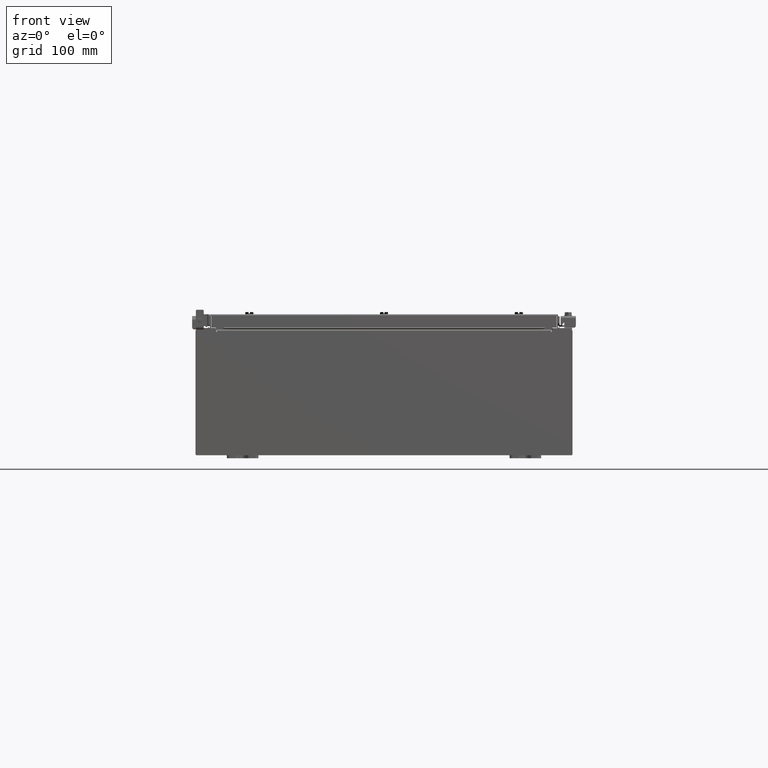
[diagram: clean part render]
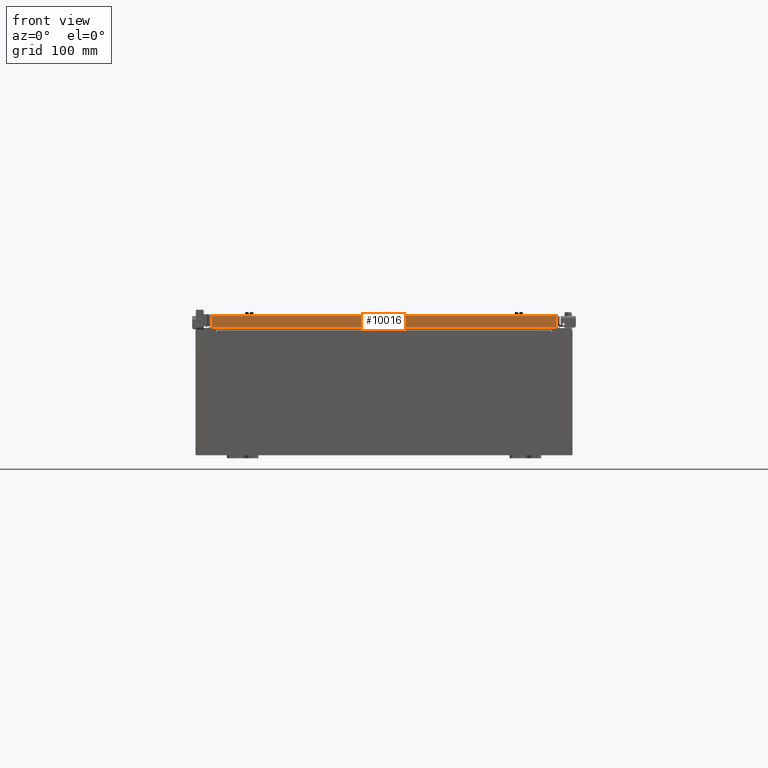
[diagram: same view with one face highlighted and labeled with its STEP entity id]
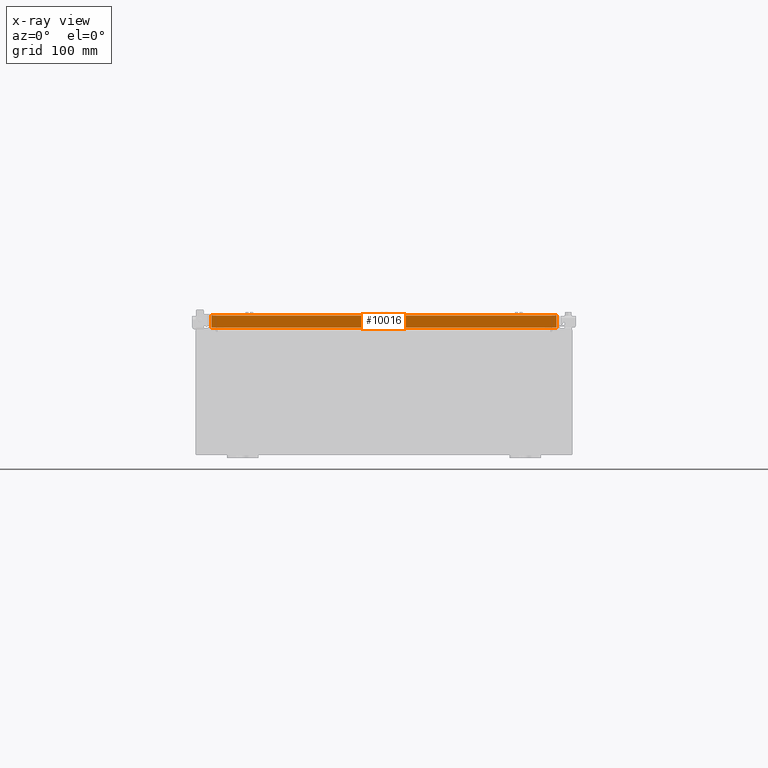
[diagram: x-ray of the same camera — body ghosted, the highlighted face saturated]
A machine part, front view. The second image highlights one B-rep face of the part: STEP entity #10016.
The next image is the same camera in x-ray: the body ghosted, the highlighted face saturated — about 0% of this face is hidden behind the body in this view.
In plain terms, the highlighted planar face has unit normal (-0, 1, -0).
Its self-contained STEP definition (entity closure, byte-faithful):
#1400 = VECTOR ( 'NONE', #5239, 39.37007874015748100 ) ;
#1714 = CARTESIAN_POINT ( 'NONE',  ( 11.07799999999999600, -17.09400000000000100, -0.8499999999999996400 ) ) ;
#1773 = ORIENTED_EDGE ( 'NONE', *, *, #9885, .F. ) ;
#2056 = ORIENTED_EDGE ( 'NONE', *, *, #18012, .F. ) ;
#2246 = VECTOR ( 'NONE', #7848, 39.37007874015748100 ) ;
#3085 = CARTESIAN_POINT ( 'NONE',  ( 10.98915786437626700, -17.09400000000000100, -0.8499999999999996400 ) ) ;
#3918 = CARTESIAN_POINT ( 'NONE',  ( -10.23915786437627100, -17.09399999999999800, -0.8500000000000012000 ) ) ;
#4022 = LINE ( 'NONE', #8791, #23183 ) ;
#4426 = AXIS2_PLACEMENT_3D ( 'NONE', #13505, #15328, #4539 ) ;
#4539 = DIRECTION ( 'NONE',  ( 0.0000000000000000000, 2.818880942772360500E-015, 1.000000000000000000 ) ) ;
#4724 = VERTEX_POINT ( 'NONE', #15511 ) ;
#5239 = DIRECTION ( 'NONE',  ( -1.000000000000000000, 4.379057701015053300E-047, 1.233005954894504400E-016 ) ) ;
#6424 = DIRECTION ( 'NONE',  ( -1.000000000000000000, 4.379057701015053300E-047, 1.233005954894504400E-016 ) ) ;
#6840 = ORIENTED_EDGE ( 'NONE', *, *, #14646, .T. ) ;
#7366 = DIRECTION ( 'NONE',  ( 1.000000000000000000, 6.951393977153906300E-032, -9.864047639156036200E-017 ) ) ;
#7663 = CARTESIAN_POINT ( 'NONE',  ( 10.23915786437626700, -17.09399999999999800, -0.8500000000000012000 ) ) ;
#7848 = DIRECTION ( 'NONE',  ( -0.0000000000000000000, -2.818880942772360500E-015, -1.000000000000000000 ) ) ;
#7985 = PLANE ( 'NONE',  #4426 ) ;
#8791 = CARTESIAN_POINT ( 'NONE',  ( -10.98915786437626900, -17.09400000000000100, 4.844676449176231400E-014 ) ) ;
#8910 = VECTOR ( 'NONE', #6424, 39.37007874015748100 ) ;
#9211 = LINE ( 'NONE', #21818, #22483 ) ;
#9885 = EDGE_CURVE ( 'NONE', #4724, #10460, #15129, .T. ) ;
#10016 = ADVANCED_FACE ( 'NONE', ( #12824 ), #7985, .F. ) ;
#10395 = EDGE_LOOP ( 'NONE', ( #16849, #6840, #16439, #1773, #2056, #16124 ) ) ;
#10460 = VERTEX_POINT ( 'NONE', #3918 ) ;
#11431 = LINE ( 'NONE', #1714, #1400 ) ;
#11978 = VECTOR ( 'NONE', #20326, 39.37007874015748100 ) ;
#12824 = FACE_OUTER_BOUND ( 'NONE', #10395, .T. ) ;
#12852 = VERTEX_POINT ( 'NONE', #15422 ) ;
#12930 = VERTEX_POINT ( 'NONE', #3085 ) ;
#13505 = CARTESIAN_POINT ( 'NONE',  ( 5.941356432273447100E-030, -17.09400000000000100, 4.844676449176231400E-014 ) ) ;
#13715 = LINE ( 'NONE', #17278, #8910 ) ;
#13979 = VERTEX_POINT ( 'NONE', #19047 ) ;
#14646 = EDGE_CURVE ( 'NONE', #12852, #13979, #4022, .T. ) ;
#15048 = CARTESIAN_POINT ( 'NONE',  ( 10.98915786437626700, -17.09400000000000100, -0.07469999999999978000 ) ) ;
#15116 = VERTEX_POINT ( 'NONE', #17496 ) ;
#15129 = LINE ( 'NONE', #7663, #11978 ) ;
#15328 = DIRECTION ( 'NONE',  ( -3.475696988576954900E-031, 1.000000000000000000, -2.818880942772360500E-015 ) ) ;
#15422 = CARTESIAN_POINT ( 'NONE',  ( -10.98915786437627200, -17.09400000000000100, -0.08769999999999787700 ) ) ;
#15511 = CARTESIAN_POINT ( 'NONE',  ( 10.23915786437626700, -17.09399999999999800, -0.8500000000000012000 ) ) ;
#16124 = ORIENTED_EDGE ( 'NONE', *, *, #17851, .F. ) ;
#16439 = ORIENTED_EDGE ( 'NONE', *, *, #20090, .F. ) ;
#16849 = ORIENTED_EDGE ( 'NONE', *, *, #19633, .F. ) ;
#17278 = CARTESIAN_POINT ( 'NONE',  ( 11.07799999999999600, -17.09400000000000100, -0.8499999999999996400 ) ) ;
#17496 = CARTESIAN_POINT ( 'NONE',  ( 10.98915786437626500, -17.09400000000000100, -0.08769999999999897300 ) ) ;
#17851 = EDGE_CURVE ( 'NONE', #15116, #12930, #21345, .T. ) ;
#18012 = EDGE_CURVE ( 'NONE', #12930, #4724, #13715, .T. ) ;
#19047 = CARTESIAN_POINT ( 'NONE',  ( -10.98915786437627200, -17.09400000000000100, -0.8499999999999969800 ) ) ;
#19633 = EDGE_CURVE ( 'NONE', #12852, #15116, #9211, .T. ) ;
#20090 = EDGE_CURVE ( 'NONE', #10460, #13979, #11431, .T. ) ;
#20326 = DIRECTION ( 'NONE',  ( -1.000000000000000000, 0.0000000000000000000, 0.0000000000000000000 ) ) ;
#21345 = LINE ( 'NONE', #15048, #2246 ) ;
#21416 = DIRECTION ( 'NONE',  ( 0.0000000000000000000, -2.818880942772360500E-015, -1.000000000000000000 ) ) ;
#21818 = CARTESIAN_POINT ( 'NONE',  ( 11.07799999999999600, -17.09400000000000100, -0.08770000000000007000 ) ) ;
#22483 = VECTOR ( 'NONE', #7366, 39.37007874015748100 ) ;
#23183 = VECTOR ( 'NONE', #21416, 39.37007874015748100 ) ;